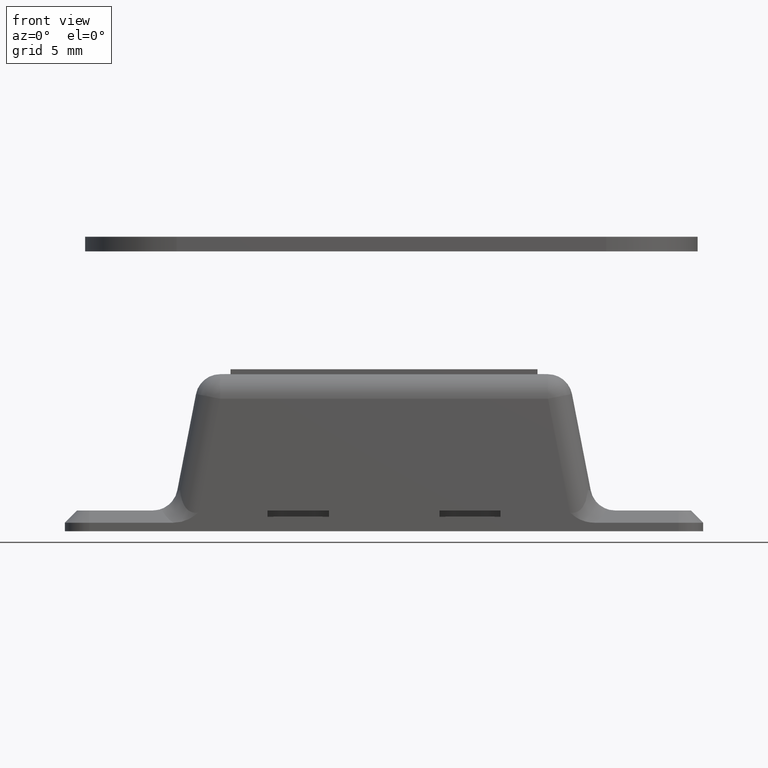
[diagram: clean part render]
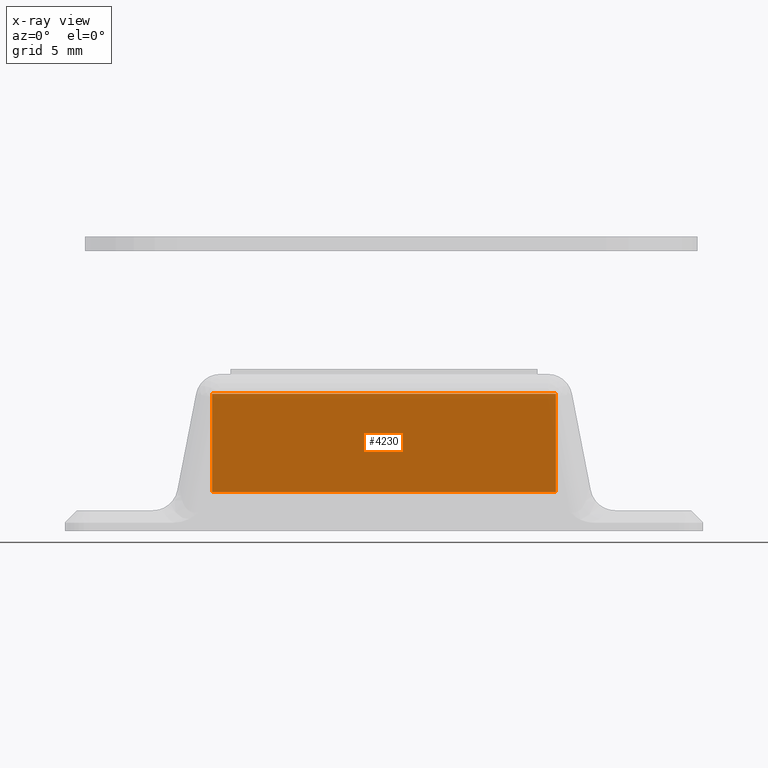
[diagram: x-ray — body ghosted, one internal face saturated and labeled with its STEP entity id]
A machine part, front view, then the same camera in x-ray: the body is ghosted and one INTERNAL B-rep face — a face not visible from any outside direction — is saturated and labeled: STEP entity #4230.
In plain terms, the highlighted planar face has unit normal (0, 1, 0).
Its self-contained STEP definition (entity closure, byte-faithful):
#520=FACE_OUTER_BOUND('',#766,.T.);
#766=EDGE_LOOP('',(#3798,#3799,#3800,#3801));
#1200=LINE('',#7497,#1640);
#1204=LINE('',#7504,#1644);
#1205=LINE('',#7507,#1645);
#1206=LINE('',#7508,#1646);
#1640=VECTOR('',#5654,7.99999999999999);
#1644=VECTOR('',#5660,28.);
#1645=VECTOR('',#5663,7.99999999999999);
#1646=VECTOR('',#5664,28.);
#2032=VERTEX_POINT('',#7494);
#2033=VERTEX_POINT('',#7496);
#2035=VERTEX_POINT('',#7502);
#2036=VERTEX_POINT('',#7506);
#2624=EDGE_CURVE('',#2032,#2033,#1200,.T.);
#2628=EDGE_CURVE('',#2032,#2035,#1204,.T.);
#2629=EDGE_CURVE('',#2036,#2035,#1205,.T.);
#2630=EDGE_CURVE('',#2033,#2036,#1206,.T.);
#3798=ORIENTED_EDGE('',*,*,#2628,.T.);
#3799=ORIENTED_EDGE('',*,*,#2629,.F.);
#3800=ORIENTED_EDGE('',*,*,#2630,.F.);
#3801=ORIENTED_EDGE('',*,*,#2624,.F.);
#4005=PLANE('',#4576);
#4230=ADVANCED_FACE('',(#520),#4005,.T.);
#4576=AXIS2_PLACEMENT_3D('',#7505,#5661,#5662);
#5654=DIRECTION('',(0.,0.,-1.));
#5660=DIRECTION('',(1.,0.,0.));
#5661=DIRECTION('center_axis',(0.,1.,0.));
#5662=DIRECTION('ref_axis',(0.,0.,1.));
#5663=DIRECTION('',(0.,0.,1.));
#5664=DIRECTION('',(1.,0.,0.));
#7494=CARTESIAN_POINT('',(-14.,-0.700000000000001,11.2));
#7496=CARTESIAN_POINT('',(-14.,-0.700000000000001,3.20000000000001));
#7497=CARTESIAN_POINT('',(-14.,-0.700000000000001,11.2));
#7502=CARTESIAN_POINT('',(14.,-0.700000000000001,11.2));
#7504=CARTESIAN_POINT('',(0.,-0.700000000000001,11.2));
#7505=CARTESIAN_POINT('Origin',(0.,-0.700000000000001,3.20000000000001));
#7506=CARTESIAN_POINT('',(14.,-0.700000000000001,3.20000000000001));
#7507=CARTESIAN_POINT('',(14.,-0.700000000000001,11.2));
#7508=CARTESIAN_POINT('',(0.,-0.700000000000001,3.20000000000001));